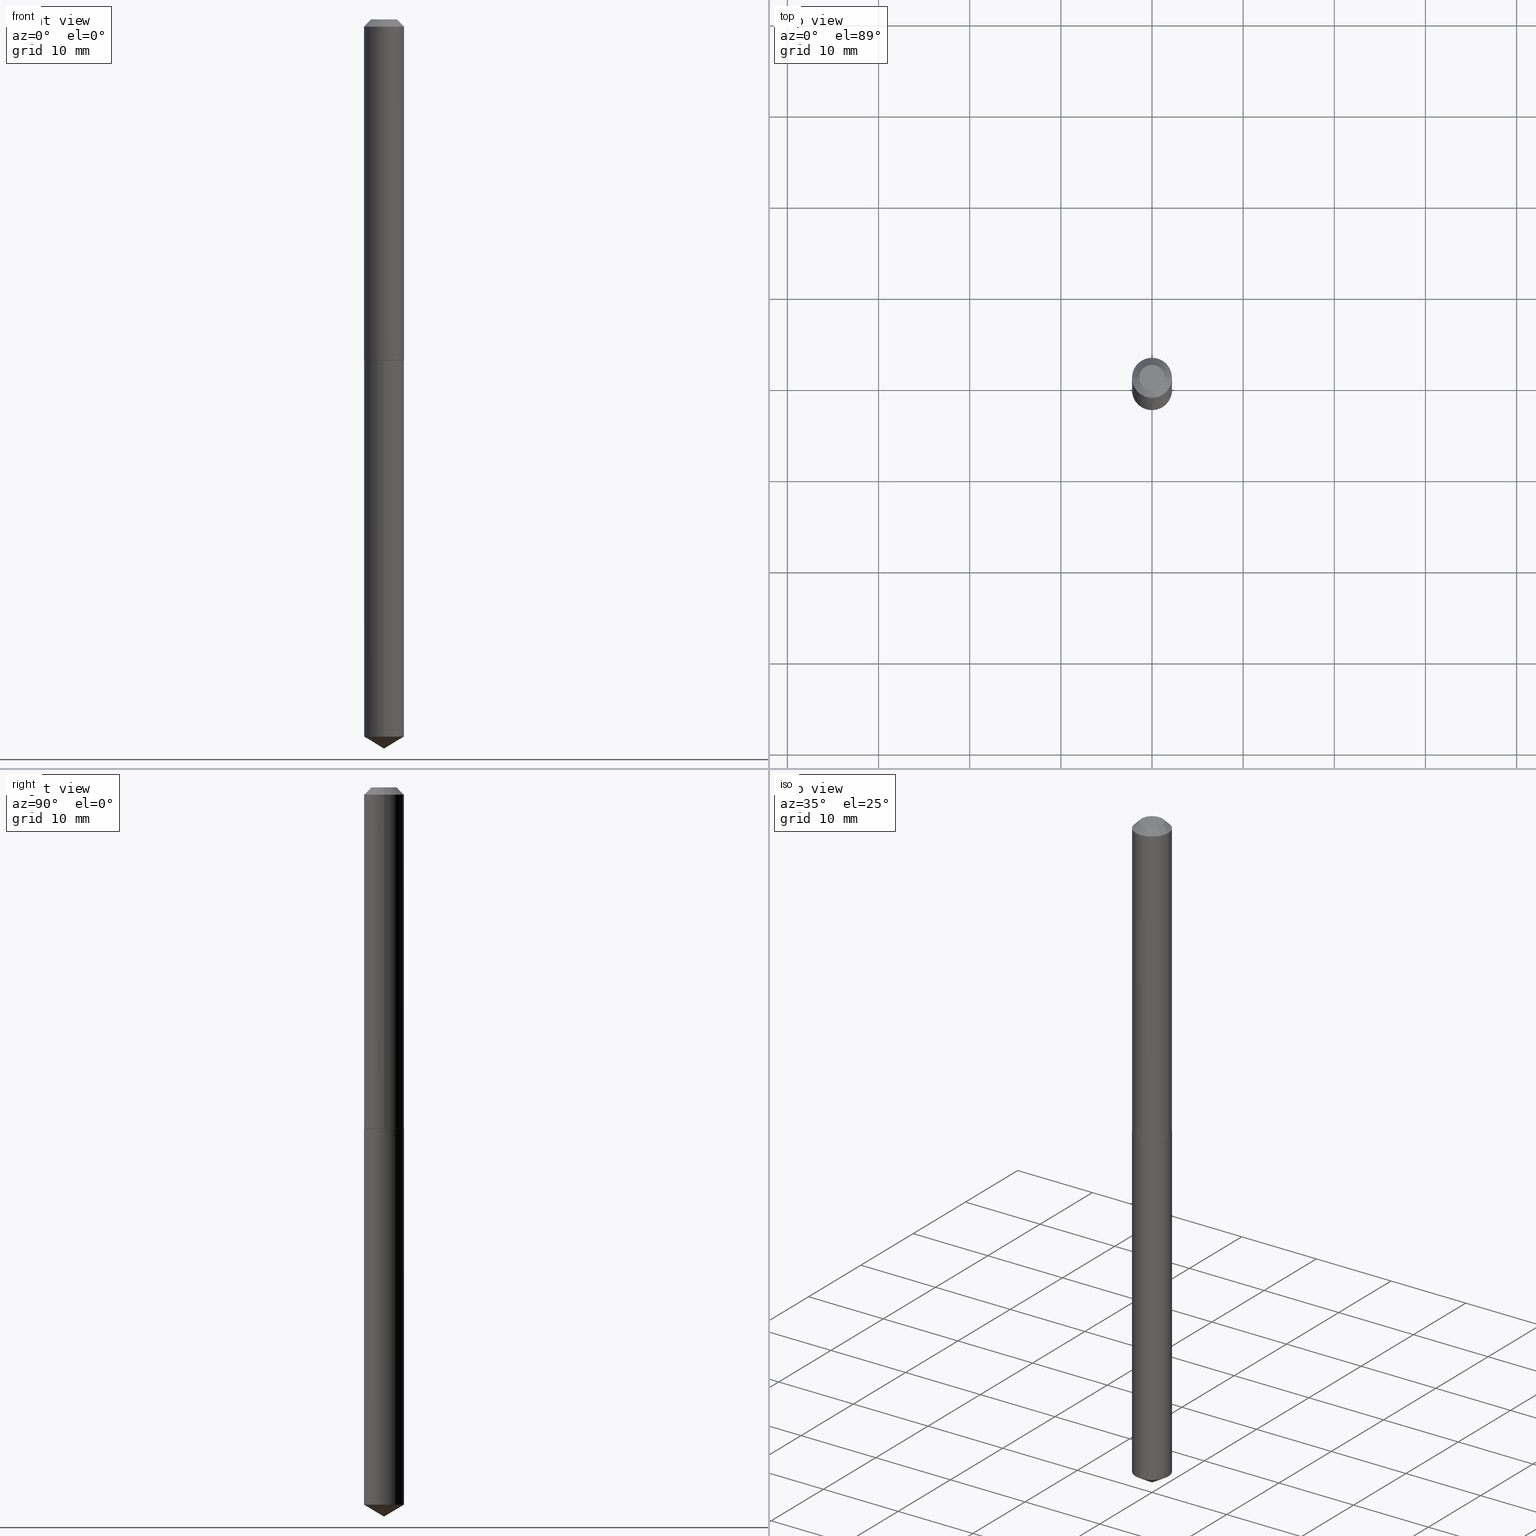
[diagram: canonical four-view strip — front | top / right | iso, engineering-drawing reading convention]
A machine part, canonical four-view strip (front | top / right | iso — engineering-drawing reading convention). The complete STEP part file that produces these views, byte-faithful:
ISO-10303-21;
HEADER;
FILE_DESCRIPTION (( 'STEP AP203' ),
    '1' );
FILE_NAME ('61079.STEP',
    '2024-04-23T03:23:07',
    ( '' ),
    ( '' ),
    'SwSTEP 2.0',
    'SolidWorks 2023',
    '' );
FILE_SCHEMA (( 'CONFIG_CONTROL_DESIGN' ));
ENDSEC;

DATA;
#1 = AXIS2_PLACEMENT_3D ( 'NONE', #169, #382, #235 ) ;
#2 = DIRECTION ( 'NONE',  ( -2.438088387897960049E-29, 3.491481338843145188E-15, 1.000000000000000000 ) ) ;
#3 = DIRECTION ( 'NONE',  ( -2.445468806185136597E-29, 3.491481338843145583E-15, 1.000000000000000000 ) ) ;
#4 = APPROVAL_ROLE ( '' ) ;
#5 = CARTESIAN_POINT ( 'NONE',  ( 7.642090019328602662E-31, -1.091087918388490267E-16, -0.03125000000000020817 ) ) ;
#6 = EDGE_CURVE ( 'NONE', #109, #16, #318, .T. ) ;
#7 = APPLICATION_PROTOCOL_DEFINITION ( 'international standard', 'config_control_design', 1994, #213 ) ;
#8 = CARTESIAN_POINT ( 'NONE',  ( -5.839929314523118284E-48, 8.337871319499000362E-34, 2.388061258337310548E-19 ) ) ;
#9 = CONICAL_SURFACE ( 'NONE', #364, 0.08660000000000017684, 0.7853981633973801113 ) ;
#10 = ORIENTED_EDGE ( 'NONE', *, *, #107, .F. ) ;
#11 = CALENDAR_DATE ( 2024, 22, 4 ) ;
#12 = DATE_AND_TIME ( #132, #39 ) ;
#13 = CARTESIAN_POINT ( 'NONE',  ( 0.08660000000000001030, -7.032279184458637207E-16, -0.03125000000000020817 ) ) ;
#14 = EDGE_CURVE ( 'NONE', #152, #271, #365, .T. ) ;
#15 = DIRECTION ( 'NONE',  ( -2.445439512287400086E-29, 3.491523289372008919E-15, 1.000000000000000000 ) ) ;
#16 = VERTEX_POINT ( 'NONE', #218 ) ;
#17 = ORGANIZATION ( 'UNSPECIFIED', 'UNSPECIFIED', '' ) ;
#18 = DIRECTION ( 'NONE',  ( -0.7071067811864992780, 7.493145998870180611E-15, 0.7071067811865957564 ) ) ;
#19 = EDGE_LOOP ( 'NONE', ( #267, #174 ) ) ;
#20 = DIRECTION ( 'NONE',  ( -2.445439512287400366E-29, 3.491523289372008919E-15, 1.000000000000000000 ) ) ;
#21 = DATE_AND_TIME ( #245, #165 ) ;
#22 = CONICAL_SURFACE ( 'NONE', #214, 0.08660000000000017684, 0.7853981633973801113 ) ;
#23 = APPROVAL_DATE_TIME ( #21, #129 ) ;
#24 = AXIS2_PLACEMENT_3D ( 'NONE', #128, #40, #274 ) ;
#25 = APPROVAL ( #227, 'UNSPECIFIED' ) ;
#26 = VECTOR ( 'NONE', #176, 39.37007874015748143 ) ;
#27 = ORIENTED_EDGE ( 'NONE', *, *, #207, .F. ) ;
#28 = CONICAL_SURFACE ( 'NONE', #141, 65.52281426576971057, 1.029744258676663193 ) ;
#29 = EDGE_CURVE ( 'NONE', #16, #109, #244, .T. ) ;
#30 = VERTEX_POINT ( 'NONE', #31 ) ;
#31 = CARTESIAN_POINT ( 'NONE',  ( -6.047245678875547006E-16, -0.08660000000001079334, -3.097565470392213971 ) ) ;
#32 = AXIS2_PLACEMENT_3D ( 'NONE', #146, #379, #167 ) ;
#33 = EDGE_CURVE ( 'NONE', #60, #47, #120, .T. ) ;
#34 = FACE_OUTER_BOUND ( 'NONE', #243, .T. ) ;
#35 = DATE_AND_TIME ( #302, #184 ) ;
#36 = ORIENTED_EDGE ( 'NONE', *, *, #295, .F. ) ;
#37 = DIRECTION ( 'NONE',  ( 1.000000000000000000, 0.000000000000000000, 0.000000000000000000 ) ) ;
#38 = DIRECTION ( 'NONE',  ( 1.000000000000000000, -6.982962677686267499E-15, 0.000000000000000000 ) ) ;
#39 = LOCAL_TIME ( 23, 23, 7.000000000000000000, #378 ) ;
#40 = DIRECTION ( 'NONE',  ( -2.445468806185136597E-29, 3.491481338843145583E-15, 1.000000000000000000 ) ) ;
#41 = APPROVAL_ROLE ( '' ) ;
#42 = EDGE_CURVE ( 'NONE', #47, #60, #187, .T. ) ;
#43 = AXIS2_PLACEMENT_3D ( 'NONE', #5, #3, #38 ) ;
#44 = CARTESIAN_POINT ( 'NONE',  ( 0.000000000000000000, 0.000000000000000000, 0.000000000000000000 ) ) ;
#45 = CARTESIAN_POINT ( 'NONE',  ( -0.05534999999999998949, 4.410613801293582594E-16, 2.388061258308374895E-19 ) ) ;
#46 = LINE ( 'NONE', #13, #26 ) ;
#47 = VERTEX_POINT ( 'NONE', #127 ) ;
#48 = DIRECTION ( 'NONE',  ( -0.7071067811865453523, 2.468850131082234184E-15, -0.7071067811865496822 ) ) ;
#49 = AXIS2_PLACEMENT_3D ( 'NONE', #281, #99, #101 ) ;
#50 = LINE ( 'NONE', #353, #134 ) ;
#51 = UNCERTAINTY_MEASURE_WITH_UNIT (LENGTH_MEASURE( 1.000000000000000082E-05 ), #130, 'distance_accuracy_value', 'NONE');
#52 = EDGE_CURVE ( 'NONE', #335, #149, #248, .T. ) ;
#53 = ORIENTED_EDGE ( 'NONE', *, *, #332, .T. ) ;
#54 = ORIENTED_EDGE ( 'NONE', *, *, #256, .T. ) ;
#55 = EDGE_CURVE ( 'NONE', #271, #60, #252, .T. ) ;
#56 = DIRECTION ( 'NONE',  ( 1.000000000000000000, -6.982962677686265922E-15, 4.876176775795935793E-29 ) ) ;
#57 = ORIENTED_EDGE ( 'NONE', *, *, #220, .T. ) ;
#58 = CC_DESIGN_PERSON_AND_ORGANIZATION_ASSIGNMENT ( #113, #237, ( #89 ) ) ;
#59 = DIRECTION ( 'NONE',  ( -2.445468806185136597E-29, 3.491481338843145583E-15, 1.000000000000000000 ) ) ;
#60 = VERTEX_POINT ( 'NONE', #160 ) ;
#61 = DIRECTION ( 'NONE',  ( 1.000000000000000000, -6.982962677686267499E-15, 4.876176775795935793E-29 ) ) ;
#62 = ORIENTED_EDGE ( 'NONE', *, *, #211, .F. ) ;
#63 =( GEOMETRIC_REPRESENTATION_CONTEXT ( 3 ) GLOBAL_UNCERTAINTY_ASSIGNED_CONTEXT ( ( #51 ) ) GLOBAL_UNIT_ASSIGNED_CONTEXT ( ( #130, #375, #97 ) ) REPRESENTATION_CONTEXT ( 'NONE', 'WORKASPACE' ) );
#64 = DIRECTION ( 'NONE',  ( 1.000000000000000000, -6.982962677686266711E-15, 4.876151470398592516E-29 ) ) ;
#65 = AXIS2_PLACEMENT_3D ( 'NONE', #131, #314, #64 ) ;
#66 = DIRECTION ( 'NONE',  ( -6.982962677686266711E-15, -1.000000000000000000, 3.468864327941526372E-15 ) ) ;
#67 = DIRECTION ( 'NONE',  ( -2.445468806185136597E-29, 3.491481338843145583E-15, 1.000000000000000000 ) ) ;
#68 = DIRECTION ( 'NONE',  ( -2.445468806185136597E-29, 3.491481338843145583E-15, 1.000000000000000000 ) ) ;
#69 = ORIENTED_EDGE ( 'NONE', *, *, #188, .T. ) ;
#70 = ADVANCED_FACE ( 'NONE', ( #34 ), #74, .T. ) ;
#71 = DIRECTION ( 'NONE',  ( 0.000000000000000000, 0.000000000000000000, 1.000000000000000000 ) ) ;
#72 = DIRECTION ( 'NONE',  ( -1.000000000000000000, 6.982962677686267499E-15, 0.000000000000000000 ) ) ;
#73 = DIRECTION ( 'NONE',  ( -6.982962677686265922E-15, -1.000000000000000000, 3.154558884138872662E-15 ) ) ;
#74 = CONICAL_SURFACE ( 'NONE', #195, 0.08660000000000001030, 0.7853981633974452814 ) ;
#75 = DIRECTION ( 'NONE',  ( -6.982962677686265922E-15, -1.000000000000000000, 6.309117768277745325E-15 ) ) ;
#76 = EDGE_CURVE ( 'NONE', #271, #152, #321, .T. ) ;
#77 = LINE ( 'NONE', #322, #180 ) ;
#78 = LOCAL_TIME ( 23, 23, 7.000000000000000000, #194 ) ;
#79 = CARTESIAN_POINT ( 'NONE',  ( 3.600708270226995482E-29, -5.140857123312647235E-15, -1.472400000000000153 ) ) ;
#80 = APPROVAL_ROLE ( '' ) ;
#81 = ORIENTED_EDGE ( 'NONE', *, *, #6, .F. ) ;
#82 = PERSON_AND_ORGANIZATION_ROLE ( 'design_supplier' ) ;
#83 = EDGE_LOOP ( 'NONE', ( #86, #373, #36 ) ) ;
#84 = CIRCLE ( 'NONE', #32, 0.08610000000000007925 ) ;
#85 = CLOSED_SHELL ( 'NONE', ( #93, #285, #315, #115, #102 ) ) ;
#86 = ORIENTED_EDGE ( 'NONE', *, *, #256, .F. ) ;
#87 = ORIENTED_EDGE ( 'NONE', *, *, #133, .T. ) ;
#88 = ADVANCED_BREP_SHAPE_REPRESENTATION ( '61079', ( #358, #234, #242 ), #63 ) ;
#89 = SECURITY_CLASSIFICATION ( '', '', #179 ) ;
#90 = LINE ( 'NONE', #306, #118 ) ;
#91 = EDGE_LOOP ( 'NONE', ( #362, #369, #69, #27 ) ) ;
#92 = DIRECTION ( 'NONE',  ( 1.000000000000000000, -6.982962677686266711E-15, 4.876151470398592516E-29 ) ) ;
#93 = ADVANCED_FACE ( 'NONE', ( #103 ), #282, .T. ) ;
#94 = CARTESIAN_POINT ( 'NONE',  ( 0.000000000000000000, 0.000000000000000000, 0.000000000000000000 ) ) ;
#95 = CARTESIAN_POINT ( 'NONE',  ( -0.08660000000000017684, -4.523781373474978898E-15, -1.471900000000000208 ) ) ;
#96 = CARTESIAN_POINT ( 'NONE',  ( 3.599485535823903241E-29, -5.139111382643227310E-15, -1.471900000000000208 ) ) ;
#97 =( NAMED_UNIT ( * ) SI_UNIT ( $, .STERADIAN. ) SOLID_ANGLE_UNIT ( ) );
#98 = CIRCLE ( 'NONE', #210, 0.08659999999999998255 ) ;
#99 = DIRECTION ( 'NONE',  ( -2.445439512287400366E-29, 3.491523289372008919E-15, 1.000000000000000000 ) ) ;
#100 = CARTESIAN_POINT ( 'NONE',  ( 3.600708270226995482E-29, -5.140857123312647235E-15, -1.472400000000000153 ) ) ;
#101 = DIRECTION ( 'NONE',  ( -6.982962677686265922E-15, -1.000000000000000000, 6.309117768277745325E-15 ) ) ;
#102 = ADVANCED_FACE ( 'NONE', ( #284 ), #225, .F. ) ;
#103 = FACE_OUTER_BOUND ( 'NONE', #193, .T. ) ;
#104 = FACE_OUTER_BOUND ( 'NONE', #316, .T. ) ;
#105 = PERSON_AND_ORGANIZATION ( #126, #17 ) ;
#106 = DIRECTION ( 'NONE',  ( 6.982962677686265922E-15, 1.000000000000000000, -3.491523289372008919E-15 ) ) ;
#107 = EDGE_CURVE ( 'NONE', #16, #47, #46, .T. ) ;
#108 = FACE_OUTER_BOUND ( 'NONE', #370, .T. ) ;
#109 = VERTEX_POINT ( 'NONE', #45 ) ;
#110 = PRODUCT_DEFINITION ( 'UNKNOWN', '', #117, #367 ) ;
#111 = DIRECTION ( 'NONE',  ( -2.445439512287400366E-29, 3.491523289372008919E-15, 1.000000000000000000 ) ) ;
#112 = DIRECTION ( 'NONE',  ( 2.445468806185136597E-29, -3.491481338843145583E-15, -1.000000000000000000 ) ) ;
#113 = PERSON_AND_ORGANIZATION ( #126, #17 ) ;
#114 = LOCAL_TIME ( 23, 23, 7.000000000000000000, #297 ) ;
#115 = ADVANCED_FACE ( 'NONE', ( #232 ), #260, .T. ) ;
#116 = ORIENTED_EDGE ( 'NONE', *, *, #6, .T. ) ;
#117 = PRODUCT_DEFINITION_FORMATION_WITH_SPECIFIED_SOURCE ( 'ANY', '', #250, .NOT_KNOWN. ) ;
#118 = VECTOR ( 'NONE', #223, 39.37007874015748143 ) ;
#119 = PRODUCT_DEFINITION_SHAPE ( 'NONE', 'NONE',  #110 ) ;
#120 = CIRCLE ( 'NONE', #43, 0.08660000000000001030 ) ;
#121 = PERSON_AND_ORGANIZATION_ROLE ( 'creator' ) ;
#122 = ORIENTED_EDGE ( 'NONE', *, *, #207, .T. ) ;
#123 = CARTESIAN_POINT ( 'NONE',  ( 3.599485535823903241E-29, -5.139111382643227310E-15, -1.471900000000000208 ) ) ;
#124 = ORIENTED_EDGE ( 'NONE', *, *, #133, .F. ) ;
#125 = FACE_OUTER_BOUND ( 'NONE', #19, .T. ) ;
#126 = PERSON ( 'UNSPECIFIED', 'UNSPECIFIED', 'UNSPECIFIED', ('UNSPECIFIED'), ('UNSPECIFIED'), ('UNSPECIFIED') ) ;
#127 = CARTESIAN_POINT ( 'NONE',  ( 0.08660000000000001030, -7.138333597264798278E-16, -0.03125000000000020817 ) ) ;
#128 = CARTESIAN_POINT ( 'NONE',  ( 7.642090019328602662E-31, -1.091087918388490267E-16, -0.03125000000000020817 ) ) ;
#129 = APPROVAL ( #384, 'UNSPECIFIED' ) ;
#130 =( CONVERSION_BASED_UNIT ( 'INCH', #343 ) LENGTH_UNIT ( ) NAMED_UNIT ( #331 ) );
#131 = CARTESIAN_POINT ( 'NONE',  ( -5.839929314523118284E-48, 8.337871319499000362E-34, 2.388061258337310548E-19 ) ) ;
#132 = CALENDAR_DATE ( 2024, 22, 4 ) ;
#133 = EDGE_CURVE ( 'NONE', #181, #271, #236, .T. ) ;
#134 = VECTOR ( 'NONE', #140, 39.37007874015748143 ) ;
#135 = CARTESIAN_POINT ( 'NONE',  ( -8.857494673281183343E-28, 1.264647068414222623E-13, 36.22047874015748192 ) ) ;
#136 = ORIENTED_EDGE ( 'NONE', *, *, #203, .T. ) ;
#137 = CC_DESIGN_PERSON_AND_ORGANIZATION_ASSIGNMENT ( #168, #286, ( #110 ) ) ;
#138 = DATE_TIME_ROLE ( 'creation_date' ) ;
#139 = CARTESIAN_POINT ( 'NONE',  ( 0.08610000000000007925, -5.742090209861436730E-15, -1.472400000000000375 ) ) ;
#140 = DIRECTION ( 'NONE',  ( -2.445468806185136877E-29, 3.491481338843145188E-15, 1.000000000000000000 ) ) ;
#141 = AXIS2_PLACEMENT_3D ( 'NONE', #185, #310, #313 ) ;
#142 = DIRECTION ( 'NONE',  ( 6.090539988449811568E-15, 0.8571673007021184398, 0.5150380749100437194 ) ) ;
#143 = ORIENTED_EDGE ( 'NONE', *, *, #107, .T. ) ;
#144 = CLOSED_SHELL ( 'NONE', ( #155, #360, #344, #290, #334, #268, #70, #231 ) ) ;
#145 = VECTOR ( 'NONE', #190, 39.37007874015748143 ) ;
#146 = CARTESIAN_POINT ( 'NONE',  ( 3.600708270226996043E-29, -5.140857123312648813E-15, -1.472400000000000375 ) ) ;
#147 = LINE ( 'NONE', #361, #292 ) ;
#148 = EDGE_CURVE ( 'NONE', #346, #30, #377, .T. ) ;
#149 = VERTEX_POINT ( 'NONE', #293 ) ;
#150 = CC_DESIGN_SECURITY_CLASSIFICATION ( #89, ( #117 ) ) ;
#151 = CARTESIAN_POINT ( 'NONE',  ( 3.599485535823903241E-29, -5.139111382643227310E-15, -1.471900000000000208 ) ) ;
#152 = VERTEX_POINT ( 'NONE', #206 ) ;
#153 = AXIS2_PLACEMENT_3D ( 'NONE', #337, #217, #158 ) ;
#154 = EDGE_LOOP ( 'NONE', ( #116, #294 ) ) ;
#155 = ADVANCED_FACE ( 'NONE', ( #104 ), #380, .T. ) ;
#156 = CARTESIAN_POINT ( 'NONE',  ( 3.599485535823903241E-29, -5.139111382643227310E-15, -1.471900000000000208 ) ) ;
#157 = AXIS2_PLACEMENT_3D ( 'NONE', #341, #59, #61 ) ;
#158 = DIRECTION ( 'NONE',  ( 1.000000000000000000, -6.982962677686266711E-15, 0.000000000000000000 ) ) ;
#159 = CARTESIAN_POINT ( 'NONE',  ( 7.642090019328602662E-31, -1.091087918388490267E-16, -0.03125000000000020817 ) ) ;
#160 = CARTESIAN_POINT ( 'NONE',  ( -0.08660000000000001030, -2.008780078072789793E-15, -0.03125000000000020817 ) ) ;
#161 = MECHANICAL_CONTEXT ( 'NONE', #328, 'mechanical' ) ;
#162 = CARTESIAN_POINT ( 'NONE',  ( 3.384457340977951918E-30, -9.812602751502257441E-15, -1.472400000000000375 ) ) ;
#163 = ORIENTED_EDGE ( 'NONE', *, *, #52, .T. ) ;
#164 = APPLICATION_PROTOCOL_DEFINITION ( 'international standard', 'config_control_design', 1994, #328 ) ;
#165 = LOCAL_TIME ( 23, 23, 7.000000000000000000, #300 ) ;
#166 = CYLINDRICAL_SURFACE ( 'NONE', #329, 0.08660000000000009357 ) ;
#167 = DIRECTION ( 'NONE',  ( 1.000000000000000000, -6.982962677686266711E-15, 0.000000000000000000 ) ) ;
#168 = PERSON_AND_ORGANIZATION ( #126, #17 ) ;
#169 = CARTESIAN_POINT ( 'NONE',  ( -2.919964657261559142E-48, 4.168935659749500181E-34, 1.194030629168655274E-19 ) ) ;
#170 = PERSON_AND_ORGANIZATION_ROLE ( 'design_owner' ) ;
#171 = DIRECTION ( 'NONE',  ( 1.000000000000000000, -6.982962677686267499E-15, 4.876176775795935793E-29 ) ) ;
#172 = CARTESIAN_POINT ( 'NONE',  ( 3.600708270226995482E-29, -5.140857123312647235E-15, -1.472400000000000153 ) ) ;
#173 = ORIENTED_EDGE ( 'NONE', *, *, #76, .F. ) ;
#174 = ORIENTED_EDGE ( 'NONE', *, *, #332, .F. ) ;
#175 = CIRCLE ( 'NONE', #222, 0.08659999999999998255 ) ;
#176 = DIRECTION ( 'NONE',  ( 0.7071067811865453523, -7.319954787623248157E-15, -0.7071067811865496822 ) ) ;
#177 = ORIENTED_EDGE ( 'NONE', *, *, #33, .F. ) ;
#178 = DIRECTION ( 'NONE',  ( -2.445439512287400366E-29, 3.491523289372008919E-15, 1.000000000000000000 ) ) ;
#179 = SECURITY_CLASSIFICATION_LEVEL ( 'unclassified' ) ;
#180 = VECTOR ( 'NONE', #142, 39.37007874015748143 ) ;
#181 = VERTEX_POINT ( 'NONE', #326 ) ;
#182 = EDGE_CURVE ( 'NONE', #109, #60, #357, .T. ) ;
#183 = EDGE_LOOP ( 'NONE', ( #291, #390, #342, #265 ) ) ;
#184 = LOCAL_TIME ( 23, 23, 7.000000000000000000, #249 ) ;
#185 = CARTESIAN_POINT ( 'NONE',  ( -8.857494673281183343E-28, 1.264647068414222623E-13, 36.22047874015748192 ) ) ;
#186 = ORIENTED_EDGE ( 'NONE', *, *, #42, .T. ) ;
#187 = CIRCLE ( 'NONE', #24, 0.08660000000000001030 ) ;
#188 = EDGE_CURVE ( 'NONE', #30, #338, #147, .T. ) ;
#189 = CC_DESIGN_DATE_AND_TIME_ASSIGNMENT ( #241, #208, ( #89 ) ) ;
#190 = DIRECTION ( 'NONE',  ( -2.445439512287400086E-29, 3.491523289372008919E-15, 1.000000000000000000 ) ) ;
#191 = EDGE_CURVE ( 'NONE', #152, #47, #50, .T. ) ;
#192 = AXIS2_PLACEMENT_3D ( 'NONE', #156, #309, #278 ) ;
#193 = EDGE_LOOP ( 'NONE', ( #136, #163, #62, #305 ) ) ;
#194 = COORDINATED_UNIVERSAL_TIME_OFFSET ( 5, 0, .BEHIND. ) ;
#195 = AXIS2_PLACEMENT_3D ( 'NONE', #159, #251, #371 ) ;
#196 = FACE_OUTER_BOUND ( 'NONE', #183, .T. ) ;
#197 = DIRECTION ( 'NONE',  ( -2.445468806185136597E-29, 3.491481338843145583E-15, 1.000000000000000000 ) ) ;
#198 = APPROVAL_PERSON_ORGANIZATION ( #280, #272, #41 ) ;
#199 = DIRECTION ( 'NONE',  ( 1.000000000000000000, -6.982962677686265133E-15, 0.000000000000000000 ) ) ;
#200 = DIRECTION ( 'NONE',  ( -6.982962677686265922E-15, -1.000000000000000000, 3.154558884138872662E-15 ) ) ;
#201 = AXIS2_PLACEMENT_3D ( 'NONE', #8, #197, #92 ) ;
#202 = CARTESIAN_POINT ( 'NONE',  ( 7.702156287900396943E-29, -1.099690175220607926E-14, -3.149600000000000399 ) ) ;
#203 = EDGE_CURVE ( 'NONE', #30, #335, #387, .T. ) ;
#204 = CIRCLE ( 'NONE', #49, 0.08659999999999998255 ) ;
#205 = DIRECTION ( 'NONE',  ( -5.985567269335973623E-15, -0.8571673007021148871, 0.5150380749100497146 ) ) ;
#206 = CARTESIAN_POINT ( 'NONE',  ( 0.08660000000000017684, -5.743835950530859023E-15, -1.471900000000000208 ) ) ;
#207 = EDGE_CURVE ( 'NONE', #149, #338, #98, .T. ) ;
#208 = DATE_TIME_ROLE ( 'classification_date' ) ;
#209 = ORIENTED_EDGE ( 'NONE', *, *, #211, .T. ) ;
#210 = AXIS2_PLACEMENT_3D ( 'NONE', #79, #178, #73 ) ;
#211 = EDGE_CURVE ( 'NONE', #338, #149, #175, .T. ) ;
#212 = EDGE_LOOP ( 'NONE', ( #209, #122 ) ) ;
#213 = APPLICATION_CONTEXT ( 'configuration controlled 3d designs of mechanical parts and assemblies' ) ;
#214 = AXIS2_PLACEMENT_3D ( 'NONE', #151, #68, #199 ) ;
#215 = DIRECTION ( 'NONE',  ( 1.000000000000000000, -6.982962677686265133E-15, 0.000000000000000000 ) ) ;
#216 = ORIENTED_EDGE ( 'NONE', *, *, #33, .T. ) ;
#217 = DIRECTION ( 'NONE',  ( -2.445468806185136597E-29, 3.491481338843145583E-15, 1.000000000000000000 ) ) ;
#218 = CARTESIAN_POINT ( 'NONE',  ( 0.05534999999999998949, -5.414782413112589897E-16, 2.388061258369751875E-19 ) ) ;
#219 = APPROVAL_DATE_TIME ( #283, #272 ) ;
#220 = EDGE_CURVE ( 'NONE', #340, #181, #84, .T. ) ;
#221 = DIRECTION ( 'NONE',  ( 1.000000000000000000, -6.982962677686265133E-15, 0.000000000000000000 ) ) ;
#222 = AXIS2_PLACEMENT_3D ( 'NONE', #172, #20, #200 ) ;
#223 = DIRECTION ( 'NONE',  ( 0.7071067811864992780, -2.468850131081751401E-15, 0.7071067811865957564 ) ) ;
#224 = DIRECTION ( 'NONE',  ( -2.445439512287400366E-29, 3.491523289372008919E-15, 1.000000000000000000 ) ) ;
#225 = PLANE ( 'NONE',  #273 ) ;
#226 = CARTESIAN_POINT ( 'NONE',  ( 7.642090019328602662E-31, -1.091087918388490267E-16, -0.03125000000000020817 ) ) ;
#227 = APPROVAL_STATUS ( 'not_yet_approved' ) ;
#228 = VECTOR ( 'NONE', #205, 39.37007874015748854 ) ;
#229 = FACE_OUTER_BOUND ( 'NONE', #388, .T. ) ;
#230 = CARTESIAN_POINT ( 'NONE',  ( 7.702156287900396943E-29, -1.099690175220607926E-14, -3.149600000000000399 ) ) ;
#231 = ADVANCED_FACE ( 'NONE', ( #296 ), #319, .F. ) ;
#232 = FACE_OUTER_BOUND ( 'NONE', #91, .T. ) ;
#233 = EDGE_LOOP ( 'NONE', ( #298, #54, #385 ) ) ;
#234 = MANIFOLD_SOLID_BREP ( 'Body-Move/Copy2[2]', #144 ) ;
#235 = DIRECTION ( 'NONE',  ( -1.000000000000000000, 6.982962677686265922E-15, -4.876176775795935793E-29 ) ) ;
#236 = LINE ( 'NONE', #257, #275 ) ;
#237 = PERSON_AND_ORGANIZATION_ROLE ( 'classification_officer' ) ;
#238 = ORIENTED_EDGE ( 'NONE', *, *, #182, .F. ) ;
#239 = CALENDAR_DATE ( 2024, 22, 4 ) ;
#240 = PRODUCT_RELATED_PRODUCT_CATEGORY ( 'detail', '', ( #250 ) ) ;
#241 = DATE_AND_TIME ( #239, #114 ) ;
#242 = AXIS2_PLACEMENT_3D ( 'NONE', #94, #71, #37 ) ;
#243 = EDGE_LOOP ( 'NONE', ( #10, #81, #312, #216 ) ) ;
#244 = CIRCLE ( 'NONE', #65, 0.05534999999999998949 ) ;
#245 = CALENDAR_DATE ( 2024, 22, 4 ) ;
#246 = ORIENTED_EDGE ( 'NONE', *, *, #76, .T. ) ;
#247 = PLANE ( 'NONE',  #325 ) ;
#248 = LINE ( 'NONE', #255, #145 ) ;
#249 = COORDINATED_UNIVERSAL_TIME_OFFSET ( 5, 0, .BEHIND. ) ;
#250 = PRODUCT ( '61079', '61079', '', ( #161 ) ) ;
#251 = DIRECTION ( 'NONE',  ( 2.445468806185136597E-29, -3.491481338843145583E-15, -1.000000000000000000 ) ) ;
#252 = LINE ( 'NONE', #374, #279 ) ;
#253 = CIRCLE ( 'NONE', #153, 0.08610000000000007925 ) ;
#254 = APPROVAL_STATUS ( 'not_yet_approved' ) ;
#255 = CARTESIAN_POINT ( 'NONE',  ( 6.153300091682826287E-16, 0.08659999999999484777, -1.472400000000000375 ) ) ;
#256 = EDGE_CURVE ( 'NONE', #346, #335, #77, .T. ) ;
#257 = CARTESIAN_POINT ( 'NONE',  ( -0.08660000000000017684, -4.523781373474978898E-15, -1.471900000000000208 ) ) ;
#258 = CC_DESIGN_DATE_AND_TIME_ASSIGNMENT ( #12, #138, ( #110 ) ) ;
#259 = CARTESIAN_POINT ( 'NONE',  ( 7.574952125529255155E-29, -1.081516021227028052E-14, -3.097565470392214415 ) ) ;
#260 = CYLINDRICAL_SURFACE ( 'NONE', #276, 0.08659999999999998255 ) ;
#261 = CC_DESIGN_PERSON_AND_ORGANIZATION_ASSIGNMENT ( #266, #82, ( #117 ) ) ;
#262 = ORIENTED_EDGE ( 'NONE', *, *, #301, .T. ) ;
#263 = CYLINDRICAL_SURFACE ( 'NONE', #157, 0.08660000000000009357 ) ;
#264 = CC_DESIGN_APPROVAL ( #25, ( #117 ) ) ;
#265 = ORIENTED_EDGE ( 'NONE', *, *, #191, .F. ) ;
#266 = PERSON_AND_ORGANIZATION ( #126, #17 ) ;
#267 = ORIENTED_EDGE ( 'NONE', *, *, #220, .F. ) ;
#268 = ADVANCED_FACE ( 'NONE', ( #108 ), #263, .T. ) ;
#269 = VECTOR ( 'NONE', #48, 39.37007874015748143 ) ;
#270 = SHAPE_DEFINITION_REPRESENTATION ( #119, #88 ) ;
#271 = VERTEX_POINT ( 'NONE', #95 ) ;
#272 = APPROVAL ( #254, 'UNSPECIFIED' ) ;
#273 = AXIS2_PLACEMENT_3D ( 'NONE', #324, #289, #106 ) ;
#274 = DIRECTION ( 'NONE',  ( 1.000000000000000000, -6.982962677686267499E-15, 0.000000000000000000 ) ) ;
#275 = VECTOR ( 'NONE', #18, 39.37007874015748143 ) ;
#276 = AXIS2_PLACEMENT_3D ( 'NONE', #381, #111, #350 ) ;
#277 = AXIS2_PLACEMENT_3D ( 'NONE', #135, #372, #66 ) ;
#278 = DIRECTION ( 'NONE',  ( 1.000000000000000000, -6.982962677686265133E-15, 0.000000000000000000 ) ) ;
#279 = VECTOR ( 'NONE', #311, 39.37007874015748143 ) ;
#280 = PERSON_AND_ORGANIZATION ( #126, #17 ) ;
#281 = CARTESIAN_POINT ( 'NONE',  ( 7.574952125529255155E-29, -1.081516021227028052E-14, -3.097565470392214415 ) ) ;
#282 = CYLINDRICAL_SURFACE ( 'NONE', #386, 0.08659999999999998255 ) ;
#283 = DATE_AND_TIME ( #11, #78 ) ;
#284 = FACE_OUTER_BOUND ( 'NONE', #212, .T. ) ;
#285 = ADVANCED_FACE ( 'NONE', ( #308 ), #351, .T. ) ;
#286 = PERSON_AND_ORGANIZATION_ROLE ( 'creator' ) ;
#287 = CC_DESIGN_PERSON_AND_ORGANIZATION_ASSIGNMENT ( #304, #121, ( #117 ) ) ;
#288 = APPROVAL_DATE_TIME ( #35, #25 ) ;
#289 = DIRECTION ( 'NONE',  ( 2.445439512287400086E-29, -3.491523289372008919E-15, -1.000000000000000000 ) ) ;
#290 = ADVANCED_FACE ( 'NONE', ( #125 ), #247, .F. ) ;
#291 = ORIENTED_EDGE ( 'NONE', *, *, #14, .T. ) ;
#292 = VECTOR ( 'NONE', #15, 39.37007874015748143 ) ;
#293 = CARTESIAN_POINT ( 'NONE',  ( 6.153300091683224662E-16, 0.08659999999999484777, -1.472400000000000375 ) ) ;
#294 = ORIENTED_EDGE ( 'NONE', *, *, #29, .T. ) ;
#295 = EDGE_CURVE ( 'NONE', #335, #30, #204, .T. ) ;
#296 = FACE_OUTER_BOUND ( 'NONE', #154, .T. ) ;
#297 = COORDINATED_UNIVERSAL_TIME_OFFSET ( 5, 0, .BEHIND. ) ;
#298 = ORIENTED_EDGE ( 'NONE', *, *, #148, .F. ) ;
#299 = AXIS2_PLACEMENT_3D ( 'NONE', #226, #112, #72 ) ;
#300 = COORDINATED_UNIVERSAL_TIME_OFFSET ( 5, 0, .BEHIND. ) ;
#301 = EDGE_CURVE ( 'NONE', #340, #152, #90, .T. ) ;
#302 = CALENDAR_DATE ( 2024, 22, 4 ) ;
#303 = CC_DESIGN_APPROVAL ( #272, ( #110 ) ) ;
#304 = PERSON_AND_ORGANIZATION ( #126, #17 ) ;
#305 = ORIENTED_EDGE ( 'NONE', *, *, #188, .F. ) ;
#306 = CARTESIAN_POINT ( 'NONE',  ( 0.08660000000000017684, -5.743835950530859023E-15, -1.471900000000000208 ) ) ;
#307 = ORIENTED_EDGE ( 'NONE', *, *, #55, .F. ) ;
#308 = FACE_OUTER_BOUND ( 'NONE', #233, .T. ) ;
#309 = DIRECTION ( 'NONE',  ( -2.445468806185136597E-29, 3.491481338843145583E-15, 1.000000000000000000 ) ) ;
#310 = DIRECTION ( 'NONE',  ( -2.445439512287400366E-29, 3.491523289372008919E-15, 1.000000000000000000 ) ) ;
#311 = DIRECTION ( 'NONE',  ( -2.445468806185136877E-29, 3.491481338843145188E-15, 1.000000000000000000 ) ) ;
#312 = ORIENTED_EDGE ( 'NONE', *, *, #182, .T. ) ;
#313 = DIRECTION ( 'NONE',  ( -6.982962677686266711E-15, -1.000000000000000000, 3.468864327941526372E-15 ) ) ;
#314 = DIRECTION ( 'NONE',  ( -2.445468806185136597E-29, 3.491481338843145583E-15, 1.000000000000000000 ) ) ;
#315 = ADVANCED_FACE ( 'NONE', ( #347 ), #28, .T. ) ;
#316 = EDGE_LOOP ( 'NONE', ( #356, #143, #186, #238 ) ) ;
#317 = CC_DESIGN_APPROVAL ( #129, ( #89 ) ) ;
#318 = CIRCLE ( 'NONE', #201, 0.05534999999999998949 ) ;
#319 = PLANE ( 'NONE',  #1 ) ;
#320 = PERSON_AND_ORGANIZATION ( #126, #17 ) ;
#321 = CIRCLE ( 'NONE', #333, 0.08660000000000017684 ) ;
#322 = CARTESIAN_POINT ( 'NONE',  ( 7.702243309009779103E-29, -1.099677821628868230E-14, -3.149600000000000399 ) ) ;
#323 = CARTESIAN_POINT ( 'NONE',  ( -6.047245678875945381E-16, -0.08660000000000513121, -1.472399999999999931 ) ) ;
#324 = CARTESIAN_POINT ( 'NONE',  ( 3.600708270226995482E-29, -5.140857123312647235E-15, -1.472400000000000153 ) ) ;
#325 = AXIS2_PLACEMENT_3D ( 'NONE', #162, #2, #56 ) ;
#326 = CARTESIAN_POINT ( 'NONE',  ( -0.08610000000000007925, -4.526430600649090888E-15, -1.472400000000000375 ) ) ;
#327 = CC_DESIGN_PERSON_AND_ORGANIZATION_ASSIGNMENT ( #320, #170, ( #250 ) ) ;
#328 = APPLICATION_CONTEXT ( 'configuration controlled 3d designs of mechanical parts and assemblies' ) ;
#329 = AXIS2_PLACEMENT_3D ( 'NONE', #44, #352, #171 ) ;
#330 = PERSON_AND_ORGANIZATION ( #126, #17 ) ;
#331 = DIMENSIONAL_EXPONENTS ( 1.000000000000000000, 0.000000000000000000, 0.000000000000000000, 0.000000000000000000, 0.000000000000000000, 0.000000000000000000, 0.000000000000000000 ) ;
#332 = EDGE_CURVE ( 'NONE', #181, #340, #253, .T. ) ;
#333 = AXIS2_PLACEMENT_3D ( 'NONE', #96, #67, #221 ) ;
#334 = ADVANCED_FACE ( 'NONE', ( #389 ), #9, .T. ) ;
#335 = VERTEX_POINT ( 'NONE', #339 ) ;
#336 = APPROVAL_PERSON_ORGANIZATION ( #330, #129, #80 ) ;
#337 = CARTESIAN_POINT ( 'NONE',  ( 3.600708270226996043E-29, -5.140857123312648813E-15, -1.472400000000000375 ) ) ;
#338 = VERTEX_POINT ( 'NONE', #323 ) ;
#339 = CARTESIAN_POINT ( 'NONE',  ( 6.153300091683221704E-16, 0.08659999999998915787, -3.097565470392214859 ) ) ;
#340 = VERTEX_POINT ( 'NONE', #139 ) ;
#341 = CARTESIAN_POINT ( 'NONE',  ( 0.000000000000000000, 0.000000000000000000, 0.000000000000000000 ) ) ;
#342 = ORIENTED_EDGE ( 'NONE', *, *, #42, .F. ) ;
#343 = LENGTH_MEASURE_WITH_UNIT ( LENGTH_MEASURE( 0.02539999999999999897 ), #376 );
#344 = ADVANCED_FACE ( 'NONE', ( #229 ), #22, .T. ) ;
#345 = AXIS2_PLACEMENT_3D ( 'NONE', #259, #383, #75 ) ;
#346 = VERTEX_POINT ( 'NONE', #202 ) ;
#347 = FACE_OUTER_BOUND ( 'NONE', #83, .T. ) ;
#348 = DIRECTION ( 'NONE',  ( -6.982962677686265922E-15, -1.000000000000000000, 3.154558884138872662E-15 ) ) ;
#349 = ORIENTED_EDGE ( 'NONE', *, *, #301, .F. ) ;
#350 = DIRECTION ( 'NONE',  ( -6.982962677686265922E-15, -1.000000000000000000, 3.154558884138872662E-15 ) ) ;
#351 = CONICAL_SURFACE ( 'NONE', #277, 65.52281426576971057, 1.029744258676663193 ) ;
#352 = DIRECTION ( 'NONE',  ( -2.445468806185136597E-29, 3.491481338843145583E-15, 1.000000000000000000 ) ) ;
#353 = CARTESIAN_POINT ( 'NONE',  ( 0.08660000000000009357, -6.047245678876314174E-16, 4.222769087839284757E-30 ) ) ;
#354 = CARTESIAN_POINT ( 'NONE',  ( -0.08660000000000001030, 4.956157760487818237E-16, -0.03125000000000020817 ) ) ;
#355 = ORIENTED_EDGE ( 'NONE', *, *, #14, .F. ) ;
#356 = ORIENTED_EDGE ( 'NONE', *, *, #29, .F. ) ;
#357 = LINE ( 'NONE', #354, #269 ) ;
#358 = MANIFOLD_SOLID_BREP ( 'Body-Move/Copy2[1]', #85 ) ;
#359 = APPROVAL_PERSON_ORGANIZATION ( #105, #25, #4 ) ;
#360 = ADVANCED_FACE ( 'NONE', ( #196 ), #166, .T. ) ;
#361 = CARTESIAN_POINT ( 'NONE',  ( -6.047245678875945381E-16, -0.08660000000000513121, -1.472399999999999931 ) ) ;
#362 = ORIENTED_EDGE ( 'NONE', *, *, #52, .F. ) ;
#363 = EDGE_LOOP ( 'NONE', ( #124, #53, #262, #173 ) ) ;
#364 = AXIS2_PLACEMENT_3D ( 'NONE', #123, #368, #215 ) ;
#365 = CIRCLE ( 'NONE', #192, 0.08660000000000017684 ) ;
#366 = ORIENTED_EDGE ( 'NONE', *, *, #191, .T. ) ;
#367 = DESIGN_CONTEXT ( 'detailed design', #213, 'design' ) ;
#368 = DIRECTION ( 'NONE',  ( -2.445468806185136597E-29, 3.491481338843145583E-15, 1.000000000000000000 ) ) ;
#369 = ORIENTED_EDGE ( 'NONE', *, *, #295, .T. ) ;
#370 = EDGE_LOOP ( 'NONE', ( #307, #246, #366, #177 ) ) ;
#371 = DIRECTION ( 'NONE',  ( -1.000000000000000000, 6.982962677686267499E-15, 0.000000000000000000 ) ) ;
#372 = DIRECTION ( 'NONE',  ( -2.445439512287400366E-29, 3.491523289372008919E-15, 1.000000000000000000 ) ) ;
#373 = ORIENTED_EDGE ( 'NONE', *, *, #148, .T. ) ;
#374 = CARTESIAN_POINT ( 'NONE',  ( -0.08660000000000009357, 6.153300091682474258E-16, -4.259797788160753011E-30 ) ) ;
#375 =( NAMED_UNIT ( * ) PLANE_ANGLE_UNIT ( ) SI_UNIT ( $, .RADIAN. ) );
#376 =( LENGTH_UNIT ( ) NAMED_UNIT ( * ) SI_UNIT ( $, .METRE. ) );
#377 = LINE ( 'NONE', #230, #228 ) ;
#378 = COORDINATED_UNIVERSAL_TIME_OFFSET ( 5, 0, .BEHIND. ) ;
#379 = DIRECTION ( 'NONE',  ( -2.445468806185136597E-29, 3.491481338843145583E-15, 1.000000000000000000 ) ) ;
#380 = CONICAL_SURFACE ( 'NONE', #299, 0.08660000000000001030, 0.7853981633974452814 ) ;
#381 = CARTESIAN_POINT ( 'NONE',  ( 3.600708270226995482E-29, -5.140857123312647235E-15, -1.472400000000000153 ) ) ;
#382 = DIRECTION ( 'NONE',  ( 2.438088387897960049E-29, -3.491481338843145188E-15, -1.000000000000000000 ) ) ;
#383 = DIRECTION ( 'NONE',  ( -2.445439512287400366E-29, 3.491523289372008919E-15, 1.000000000000000000 ) ) ;
#384 = APPROVAL_STATUS ( 'not_yet_approved' ) ;
#385 = ORIENTED_EDGE ( 'NONE', *, *, #203, .F. ) ;
#386 = AXIS2_PLACEMENT_3D ( 'NONE', #100, #224, #348 ) ;
#387 = CIRCLE ( 'NONE', #345, 0.08659999999999998255 ) ;
#388 = EDGE_LOOP ( 'NONE', ( #57, #87, #355, #349 ) ) ;
#389 = FACE_OUTER_BOUND ( 'NONE', #363, .T. ) ;
#390 = ORIENTED_EDGE ( 'NONE', *, *, #55, .T. ) ;
ENDSEC;
END-ISO-10303-21;
